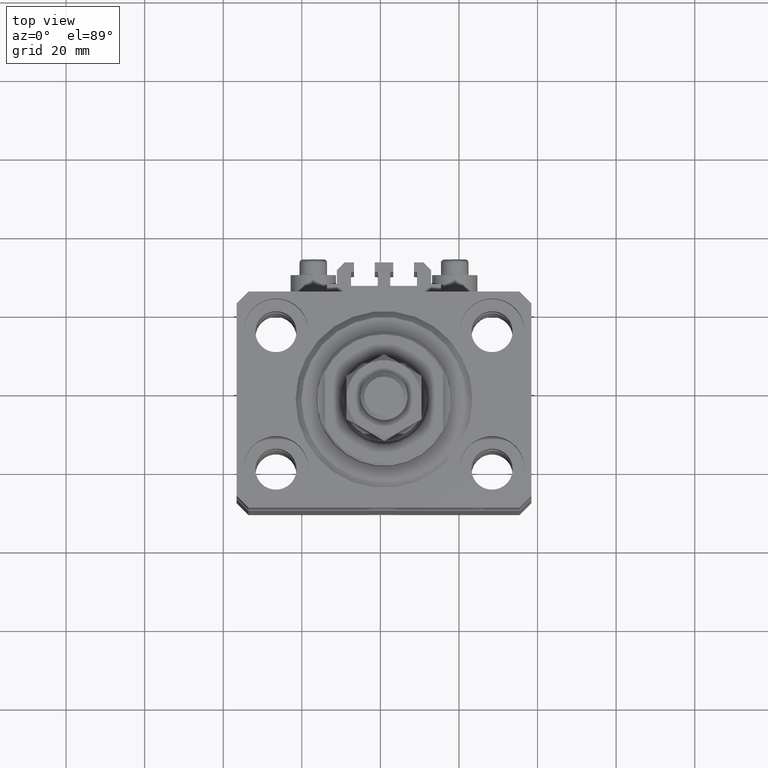
[diagram: clean part render]
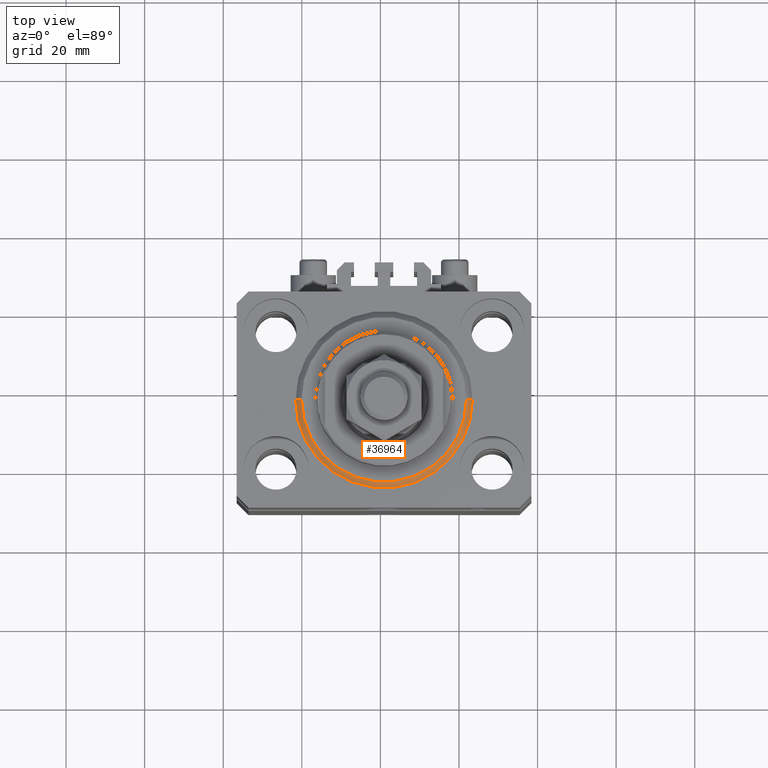
[diagram: same view with one face highlighted and labeled with its STEP entity id]
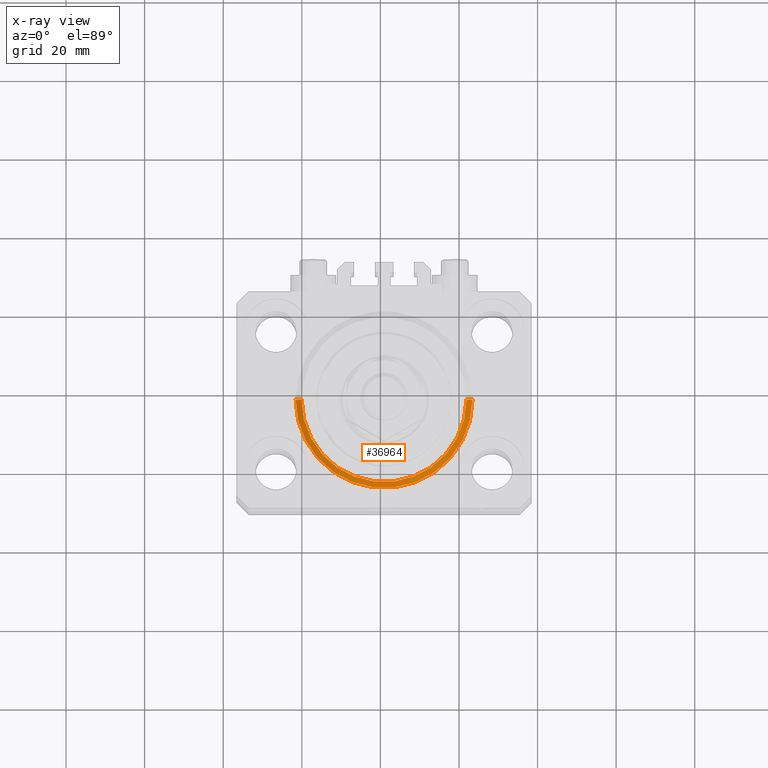
[diagram: x-ray of the same camera — body ghosted, the highlighted face saturated]
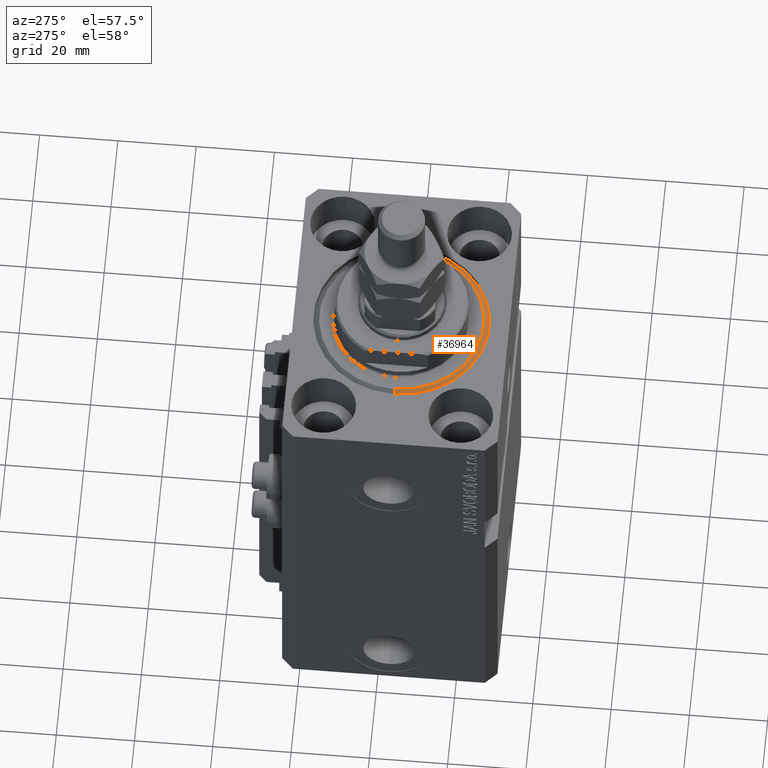
[diagram: same view with one face highlighted and labeled with its STEP entity id]
A machine part, top view. The second image highlights one B-rep face of the part: STEP entity #36964.
The next image is the same camera in x-ray: the body ghosted, the highlighted face saturated — about 0% of this face is hidden behind the body in this view.
A second angle (auxiliary view) of the same face is appended — the face is thin or edge-on in the first view.
In plain terms, the highlighted conical surface has half-angle 45 deg.
Its self-contained STEP definition (entity closure, byte-faithful):
#1463 = AXIS2_PLACEMENT_3D ( 'NONE', #2487, #25006, #43573 ) ;
#1702 = CARTESIAN_POINT ( 'NONE',  ( 20.99999999999995381, 0.000000000000000000, 0.000000000000000000 ) ) ;
#2065 = DIRECTION ( 'NONE',  ( 1.000000000000000000, 0.000000000000000000, 0.000000000000000000 ) ) ;
#2487 = CARTESIAN_POINT ( 'NONE',  ( 0.000000000000000000, 0.000000000000000000, 1.500000000000039524 ) ) ;
#5917 = CARTESIAN_POINT ( 'NONE',  ( 22.50000000000000355, 0.000000000000000000, 1.500000000000039524 ) ) ;
#7614 = VECTOR ( 'NONE', #14830, 1000.000000000000114 ) ;
#8715 = CARTESIAN_POINT ( 'NONE',  ( -20.99999999999995381, 2.663606788145490261E-15, 0.000000000000000000 ) ) ;
#8762 = EDGE_CURVE ( 'NONE', #42838, #9081, #22360, .T. ) ;
#9081 = VERTEX_POINT ( 'NONE', #8715 ) ;
#9105 = EDGE_CURVE ( 'NONE', #14392, #25346, #27094, .T. ) ;
#9199 = CARTESIAN_POINT ( 'NONE',  ( 0.000000000000000000, 0.000000000000000000, 1.500000000000039524 ) ) ;
#10495 = ORIENTED_EDGE ( 'NONE', *, *, #31721, .T. ) ;
#12330 = VECTOR ( 'NONE', #16575, 1000.000000000000114 ) ;
#14392 = VERTEX_POINT ( 'NONE', #18819 ) ;
#14830 = DIRECTION ( 'NONE',  ( -0.7071067811865500152, 8.659560562354962440E-17, 0.7071067811865451302 ) ) ;
#15554 = CARTESIAN_POINT ( 'NONE',  ( -22.50000000000000355, 2.755455298081545172E-15, 1.500000000000039524 ) ) ;
#15711 = CONICAL_SURFACE ( 'NONE', #1463, 22.50000000000000355, 0.7853981633974517207 ) ;
#16303 = EDGE_CURVE ( 'NONE', #9081, #14392, #45514, .T. ) ;
#16575 = DIRECTION ( 'NONE',  ( 0.7071067811865500152, 0.000000000000000000, 0.7071067811865451302 ) ) ;
#18819 = CARTESIAN_POINT ( 'NONE',  ( -22.50000000000000355, 0.000000000000000000, 1.500000000000039524 ) ) ;
#19493 = EDGE_LOOP ( 'NONE', ( #27532, #26328, #10495, #23336 ) ) ;
#22360 = CIRCLE ( 'NONE', #25498, 20.99999999999995381 ) ;
#23336 = ORIENTED_EDGE ( 'NONE', *, *, #9105, .F. ) ;
#25006 = DIRECTION ( 'NONE',  ( -0.000000000000000000, -0.000000000000000000, 1.000000000000000000 ) ) ;
#25346 = VERTEX_POINT ( 'NONE', #31558 ) ;
#25498 = AXIS2_PLACEMENT_3D ( 'NONE', #47597, #35248, #2065 ) ;
#26328 = ORIENTED_EDGE ( 'NONE', *, *, #8762, .F. ) ;
#27094 = CIRCLE ( 'NONE', #38168, 22.50000000000000355 ) ;
#27532 = ORIENTED_EDGE ( 'NONE', *, *, #16303, .F. ) ;
#28479 = FACE_OUTER_BOUND ( 'NONE', #19493, .T. ) ;
#31558 = CARTESIAN_POINT ( 'NONE',  ( 22.50000000000000355, 2.755455298081544383E-15, 1.500000000000039524 ) ) ;
#31721 = EDGE_CURVE ( 'NONE', #42838, #25346, #43540, .T. ) ;
#35248 = DIRECTION ( 'NONE',  ( -0.000000000000000000, -0.000000000000000000, -1.000000000000000000 ) ) ;
#35437 = DIRECTION ( 'NONE',  ( 1.000000000000000000, 0.000000000000000000, 0.000000000000000000 ) ) ;
#36964 = ADVANCED_FACE ( 'NONE', ( #28479 ), #15711, .T. ) ;
#38168 = AXIS2_PLACEMENT_3D ( 'NONE', #9199, #46575, #35437 ) ;
#42838 = VERTEX_POINT ( 'NONE', #1702 ) ;
#43540 = LINE ( 'NONE', #5917, #12330 ) ;
#43573 = DIRECTION ( 'NONE',  ( 1.000000000000000000, 0.000000000000000000, 0.000000000000000000 ) ) ;
#45514 = LINE ( 'NONE', #15554, #7614 ) ;
#46575 = DIRECTION ( 'NONE',  ( -0.000000000000000000, -0.000000000000000000, 1.000000000000000000 ) ) ;
#47597 = CARTESIAN_POINT ( 'NONE',  ( 0.000000000000000000, 0.000000000000000000, 0.000000000000000000 ) ) ;